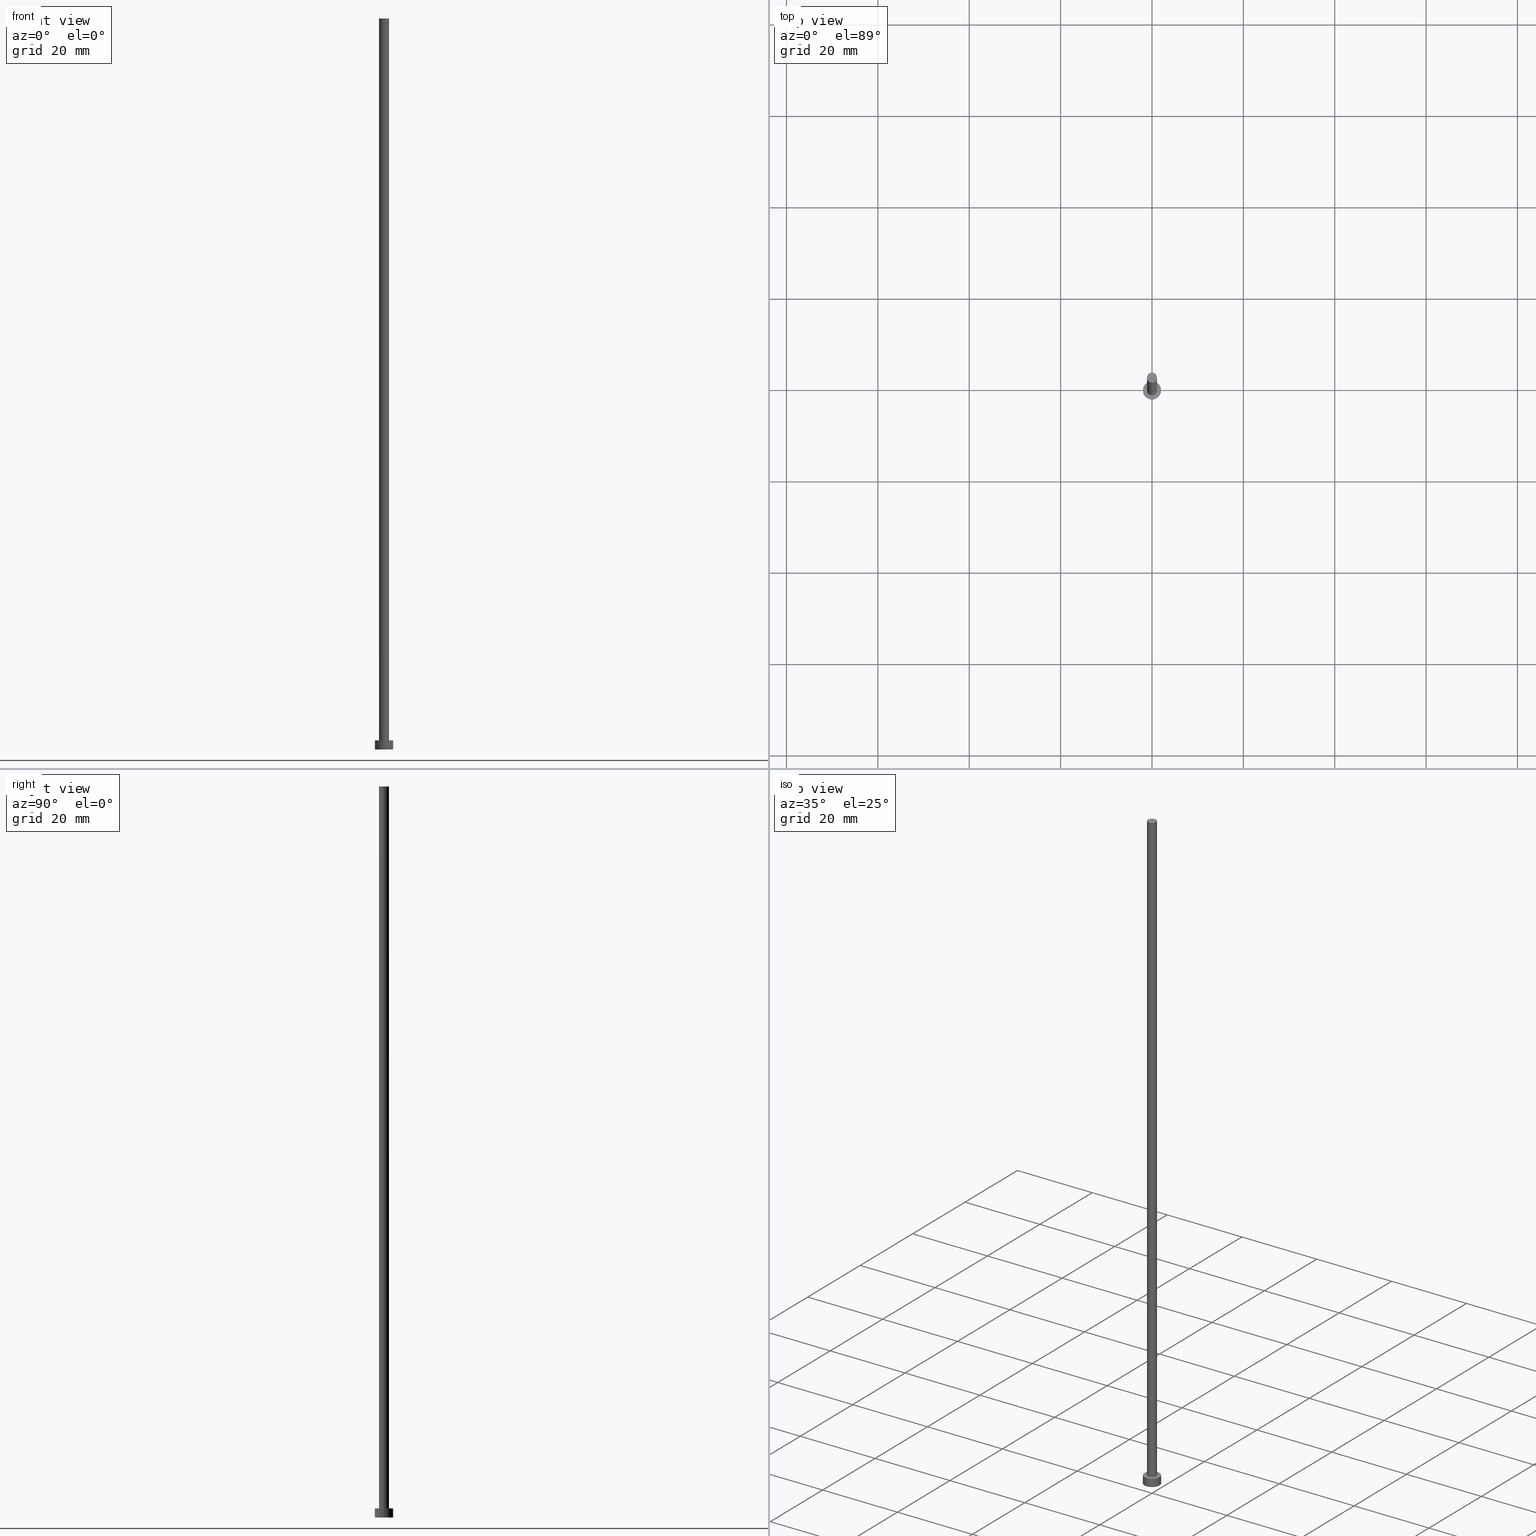
[diagram: canonical four-view strip — front | top / right | iso, engineering-drawing reading convention]
A machine part, canonical four-view strip (front | top / right | iso — engineering-drawing reading convention). The complete STEP part file that produces these views, byte-faithful:
ISO-10303-21;
HEADER;
FILE_DESCRIPTION (( 'STEP AP203' ),
    '1' );
FILE_NAME ('8614.STEP',
    '2023-02-12T12:50:51',
    ( '' ),
    ( '' ),
    'SwSTEP 2.0',
    'SolidWorks 2019',
    '' );
FILE_SCHEMA (( 'CONFIG_CONTROL_DESIGN' ));
ENDSEC;

DATA;
#1 = CARTESIAN_POINT ( 'NONE',  ( -2.000000000000000000, 0.000000000000000000, 0.000000000000000000 ) ) ;
#2 = CALENDAR_DATE ( 2023, 12, 2 ) ;
#3 = CARTESIAN_POINT ( 'NONE',  ( 2.000000000000000000, 2.449293598294706414E-16, 0.000000000000000000 ) ) ;
#4 = DIRECTION ( 'NONE',  ( -1.000000000000000000, 0.000000000000000000, 0.000000000000000000 ) ) ;
#5 = CARTESIAN_POINT ( 'NONE',  ( 0.000000000000000000, 0.000000000000000000, 2.000000000000000000 ) ) ;
#6 = CARTESIAN_POINT ( 'NONE',  ( -2.000000000000000000, 0.000000000000000000, 2.000000000000000000 ) ) ;
#7 = DIRECTION ( 'NONE',  ( 0.000000000000000000, 0.000000000000000000, 1.000000000000000000 ) ) ;
#8 = APPLICATION_PROTOCOL_DEFINITION ( 'international standard', 'config_control_design', 1994, #25 ) ;
#9 = LOCAL_TIME ( 13, 50, 51.00000000000000000, #174 ) ;
#10 =( NAMED_UNIT ( * ) PLANE_ANGLE_UNIT ( ) SI_UNIT ( $, .RADIAN. ) );
#11 = EDGE_CURVE ( 'NONE', #157, #193, #150, .T. ) ;
#12 = APPROVAL_STATUS ( 'not_yet_approved' ) ;
#13 = EDGE_CURVE ( 'NONE', #104, #123, #229, .T. ) ;
#14 = ORIENTED_EDGE ( 'NONE', *, *, #65, .F. ) ;
#15 = DESIGN_CONTEXT ( 'detailed design', #242, 'design' ) ;
#16 = CC_DESIGN_PERSON_AND_ORGANIZATION_ASSIGNMENT ( #237, #209, ( #80 ) ) ;
#17 = CARTESIAN_POINT ( 'NONE',  ( 0.000000000000000000, 0.000000000000000000, 160.0000000000000000 ) ) ;
#18 = FACE_OUTER_BOUND ( 'NONE', #194, .T. ) ;
#19 = AXIS2_PLACEMENT_3D ( 'NONE', #162, #233, #62 ) ;
#20 = ORIENTED_EDGE ( 'NONE', *, *, #243, .T. ) ;
#21 = ADVANCED_FACE ( 'NONE', ( #18 ), #141, .T. ) ;
#22 = DIRECTION ( 'NONE',  ( 1.000000000000000000, 0.000000000000000000, 0.000000000000000000 ) ) ;
#23 = PRODUCT_RELATED_PRODUCT_CATEGORY ( 'detail', '', ( #182 ) ) ;
#24 = CC_DESIGN_APPROVAL ( #158, ( #232 ) ) ;
#25 = APPLICATION_CONTEXT ( 'configuration controlled 3d designs of mechanical parts and assemblies' ) ;
#26 = CARTESIAN_POINT ( 'NONE',  ( 0.000000000000000000, 0.000000000000000000, 160.0000000000000000 ) ) ;
#27 = CYLINDRICAL_SURFACE ( 'NONE', #188, 2.000000000000000000 ) ;
#28 = CARTESIAN_POINT ( 'NONE',  ( 1.100000000000000089, 1.347111479062088503E-16, 160.0000000000000000 ) ) ;
#29 = LOCAL_TIME ( 13, 50, 51.00000000000000000, #38 ) ;
#30 = CARTESIAN_POINT ( 'NONE',  ( -1.100000000000000089, 0.000000000000000000, 160.0000000000000000 ) ) ;
#31 = LINE ( 'NONE', #187, #87 ) ;
#32 = AXIS2_PLACEMENT_3D ( 'NONE', #53, #191, #239 ) ;
#33 = CARTESIAN_POINT ( 'NONE',  ( 0.000000000000000000, 0.000000000000000000, 0.000000000000000000 ) ) ;
#34 = ADVANCED_FACE ( 'NONE', ( #195 ), #170, .T. ) ;
#35 = MANIFOLD_SOLID_BREP ( 'P�idat vysunut�m3', #83 ) ;
#36 = SECURITY_CLASSIFICATION_LEVEL ( 'unclassified' ) ;
#37 = ORIENTED_EDGE ( 'NONE', *, *, #13, .F. ) ;
#38 = COORDINATED_UNIVERSAL_TIME_OFFSET ( 1, 0, .AHEAD. ) ;
#39 = VERTEX_POINT ( 'NONE', #224 ) ;
#40 = ORIENTED_EDGE ( 'NONE', *, *, #171, .F. ) ;
#41 = DIRECTION ( 'NONE',  ( 1.000000000000000000, 0.000000000000000000, 0.000000000000000000 ) ) ;
#42 = VECTOR ( 'NONE', #240, 1000.000000000000000 ) ;
#43 = DIRECTION ( 'NONE',  ( 0.000000000000000000, 0.000000000000000000, 1.000000000000000000 ) ) ;
#44 = PERSON_AND_ORGANIZATION ( #79, #176 ) ;
#45 = CC_DESIGN_DATE_AND_TIME_ASSIGNMENT ( #85, #159, ( #221 ) ) ;
#46 = CARTESIAN_POINT ( 'NONE',  ( 0.000000000000000000, 0.000000000000000000, 2.000000000000000000 ) ) ;
#47 = COORDINATED_UNIVERSAL_TIME_OFFSET ( 1, 0, .AHEAD. ) ;
#48 = DIRECTION ( 'NONE',  ( -1.000000000000000000, 0.000000000000000000, 0.000000000000000000 ) ) ;
#49 = LINE ( 'NONE', #132, #134 ) ;
#50 = LINE ( 'NONE', #92, #42 ) ;
#51 = CIRCLE ( 'NONE', #216, 2.000000000000000000 ) ;
#52 = PLANE ( 'NONE',  #185 ) ;
#53 = CARTESIAN_POINT ( 'NONE',  ( 0.000000000000000000, 0.000000000000000000, 0.000000000000000000 ) ) ;
#54 = ORIENTED_EDGE ( 'NONE', *, *, #226, .T. ) ;
#55 = ORIENTED_EDGE ( 'NONE', *, *, #90, .F. ) ;
#56 = CC_DESIGN_DATE_AND_TIME_ASSIGNMENT ( #91, #57, ( #232 ) ) ;
#57 = DATE_TIME_ROLE ( 'creation_date' ) ;
#58 = ORIENTED_EDGE ( 'NONE', *, *, #171, .T. ) ;
#59 = PERSON_AND_ORGANIZATION ( #79, #176 ) ;
#60 = APPROVAL_PERSON_ORGANIZATION ( #139, #70, #129 ) ;
#61 = ADVANCED_FACE ( 'NONE', ( #166, #67 ), #131, .T. ) ;
#62 = DIRECTION ( 'NONE',  ( 1.000000000000000000, 0.000000000000000000, 0.000000000000000000 ) ) ;
#63 = DIRECTION ( 'NONE',  ( 0.000000000000000000, 0.000000000000000000, 1.000000000000000000 ) ) ;
#64 = ORIENTED_EDGE ( 'NONE', *, *, #126, .T. ) ;
#65 = EDGE_CURVE ( 'NONE', #254, #215, #173, .T. ) ;
#66 = ORIENTED_EDGE ( 'NONE', *, *, #226, .F. ) ;
#67 = FACE_OUTER_BOUND ( 'NONE', #197, .T. ) ;
#68 = AXIS2_PLACEMENT_3D ( 'NONE', #17, #63, #124 ) ;
#69 = PERSON_AND_ORGANIZATION ( #79, #176 ) ;
#70 = APPROVAL ( #12, 'NEUR�EN�' ) ;
#71 = EDGE_CURVE ( 'NONE', #39, #253, #113, .T. ) ;
#72 = APPLICATION_PROTOCOL_DEFINITION ( 'international standard', 'config_control_design', 1994, #242 ) ;
#73 = EDGE_CURVE ( 'NONE', #215, #254, #121, .T. ) ;
#74 = CC_DESIGN_APPROVAL ( #167, ( #221 ) ) ;
#75 = CARTESIAN_POINT ( 'NONE',  ( 0.000000000000000000, 0.000000000000000000, 160.0000000000000000 ) ) ;
#76 = AXIS2_PLACEMENT_3D ( 'NONE', #201, #218, #77 ) ;
#77 = DIRECTION ( 'NONE',  ( 1.000000000000000000, 0.000000000000000000, 0.000000000000000000 ) ) ;
#78 = DATE_AND_TIME ( #154, #9 ) ;
#79 = PERSON ( 'NEUR�EN�', 'NEUR�EN�', 'NEUR�EN�', ('NEUR�EN�'), ('NEUR�EN�'), ('NEUR�EN�') ) ;
#80 = PRODUCT_DEFINITION_FORMATION_WITH_SPECIFIED_SOURCE ( 'LIBOVOLN�', '', #182, .NOT_KNOWN. ) ;
#81 = CARTESIAN_POINT ( 'NONE',  ( 1.100000000000000089, 1.347111479062088503E-16, 160.0000000000000000 ) ) ;
#82 = CC_DESIGN_PERSON_AND_ORGANIZATION_ASSIGNMENT ( #220, #100, ( #80 ) ) ;
#83 = CLOSED_SHELL ( 'NONE', ( #34, #99, #161, #61, #196, #207, #21 ) ) ;
#84 = APPROVAL_DATE_TIME ( #234, #158 ) ;
#85 = DATE_AND_TIME ( #251, #200 ) ;
#86 = ORIENTED_EDGE ( 'NONE', *, *, #13, .T. ) ;
#87 = VECTOR ( 'NONE', #189, 1000.000000000000000 ) ;
#88 = EDGE_LOOP ( 'NONE', ( #37, #40 ) ) ;
#89 = AXIS2_PLACEMENT_3D ( 'NONE', #46, #199, #22 ) ;
#90 = EDGE_CURVE ( 'NONE', #193, #157, #202, .T. ) ;
#91 = DATE_AND_TIME ( #107, #130 ) ;
#92 = CARTESIAN_POINT ( 'NONE',  ( -1.100000000000000089, 0.000000000000000000, 160.0000000000000000 ) ) ;
#93 = CARTESIAN_POINT ( 'NONE',  ( 0.000000000000000000, 0.000000000000000000, 0.000000000000000000 ) ) ;
#94 = DIRECTION ( 'NONE',  ( -0.000000000000000000, -0.000000000000000000, -1.000000000000000000 ) ) ;
#95 = VECTOR ( 'NONE', #181, 1000.000000000000000 ) ;
#96 = CC_DESIGN_PERSON_AND_ORGANIZATION_ASSIGNMENT ( #69, #119, ( #221 ) ) ;
#97 = APPROVAL_PERSON_ORGANIZATION ( #59, #167, #122 ) ;
#98 = FACE_OUTER_BOUND ( 'NONE', #88, .T. ) ;
#99 = ADVANCED_FACE ( 'NONE', ( #146 ), #225, .T. ) ;
#100 = PERSON_AND_ORGANIZATION_ROLE ( 'creator' ) ;
#101 = APPROVAL_STATUS ( 'not_yet_approved' ) ;
#102 = EDGE_LOOP ( 'NONE', ( #105, #14, #64, #175 ) ) ;
#103 = CALENDAR_DATE ( 2023, 12, 2 ) ;
#104 = VERTEX_POINT ( 'NONE', #1 ) ;
#105 = ORIENTED_EDGE ( 'NONE', *, *, #114, .F. ) ;
#106 = ORIENTED_EDGE ( 'NONE', *, *, #90, .T. ) ;
#107 = CALENDAR_DATE ( 2023, 12, 2 ) ;
#108 = DIRECTION ( 'NONE',  ( -0.000000000000000000, -0.000000000000000000, -1.000000000000000000 ) ) ;
#109 = MECHANICAL_CONTEXT ( 'NONE', #25, 'mechanical' ) ;
#110 = DIRECTION ( 'NONE',  ( -1.000000000000000000, 0.000000000000000000, 0.000000000000000000 ) ) ;
#111 = CARTESIAN_POINT ( 'NONE',  ( 0.000000000000000000, 0.000000000000000000, 2.000000000000000000 ) ) ;
#112 = FACE_OUTER_BOUND ( 'NONE', #213, .T. ) ;
#113 = CIRCLE ( 'NONE', #76, 1.100000000000000089 ) ;
#114 = EDGE_CURVE ( 'NONE', #215, #253, #204, .T. ) ;
#115 = DIRECTION ( 'NONE',  ( 0.000000000000000000, 0.000000000000000000, 1.000000000000000000 ) ) ;
#116 = UNCERTAINTY_MEASURE_WITH_UNIT (LENGTH_MEASURE( 1.000000000000000082E-05 ), #246, 'distance_accuracy_value', 'NONE');
#117 = PRODUCT_DEFINITION_SHAPE ( 'NONE', 'NONE',  #232 ) ;
#118 = PERSON_AND_ORGANIZATION ( #79, #176 ) ;
#119 = PERSON_AND_ORGANIZATION_ROLE ( 'classification_officer' ) ;
#120 = ORIENTED_EDGE ( 'NONE', *, *, #65, .T. ) ;
#121 = CIRCLE ( 'NONE', #245, 1.100000000000000089 ) ;
#122 = APPROVAL_ROLE ( '' ) ;
#123 = VERTEX_POINT ( 'NONE', #3 ) ;
#124 = DIRECTION ( 'NONE',  ( 1.000000000000000000, 0.000000000000000000, -0.000000000000000000 ) ) ;
#125 = ORIENTED_EDGE ( 'NONE', *, *, #190, .F. ) ;
#126 = EDGE_CURVE ( 'NONE', #254, #39, #50, .T. ) ;
#127 = COORDINATED_UNIVERSAL_TIME_OFFSET ( 1, 0, .AHEAD. ) ;
#128 = CARTESIAN_POINT ( 'NONE',  ( 0.000000000000000000, 0.000000000000000000, 160.0000000000000000 ) ) ;
#129 = APPROVAL_ROLE ( '' ) ;
#130 = LOCAL_TIME ( 13, 50, 51.00000000000000000, #127 ) ;
#131 = PLANE ( 'NONE',  #223 ) ;
#132 = CARTESIAN_POINT ( 'NONE',  ( -2.000000000000000000, 0.000000000000000000, 2.000000000000000000 ) ) ;
#133 = DIRECTION ( 'NONE',  ( 0.000000000000000000, 0.000000000000000000, 1.000000000000000000 ) ) ;
#134 = VECTOR ( 'NONE', #94, 1000.000000000000000 ) ;
#135 = CC_DESIGN_PERSON_AND_ORGANIZATION_ASSIGNMENT ( #252, #219, ( #232 ) ) ;
#136 = AXIS2_PLACEMENT_3D ( 'NONE', #128, #238, #151 ) ;
#137 = CARTESIAN_POINT ( 'NONE',  ( 1.100000000000000089, 1.347111479062088503E-16, 2.000000000000000000 ) ) ;
#138 = DIRECTION ( 'NONE',  ( 1.000000000000000000, 0.000000000000000000, 0.000000000000000000 ) ) ;
#139 = PERSON_AND_ORGANIZATION ( #79, #176 ) ;
#140 = APPROVAL_PERSON_ORGANIZATION ( #44, #158, #198 ) ;
#141 = PLANE ( 'NONE',  #68 ) ;
#142 = ORIENTED_EDGE ( 'NONE', *, *, #73, .T. ) ;
#143 = ORIENTED_EDGE ( 'NONE', *, *, #243, .F. ) ;
#144 = CC_DESIGN_PERSON_AND_ORGANIZATION_ASSIGNMENT ( #118, #249, ( #182 ) ) ;
#145 = DIRECTION ( 'NONE',  ( 1.000000000000000000, 0.000000000000000000, -0.000000000000000000 ) ) ;
#146 = FACE_OUTER_BOUND ( 'NONE', #177, .T. ) ;
#147 = APPROVAL_DATE_TIME ( #179, #70 ) ;
#148 = DIRECTION ( 'NONE',  ( -0.000000000000000000, -0.000000000000000000, -1.000000000000000000 ) ) ;
#149 = DIRECTION ( 'NONE',  ( 1.000000000000000000, 0.000000000000000000, 0.000000000000000000 ) ) ;
#150 = CIRCLE ( 'NONE', #168, 2.000000000000000000 ) ;
#151 = DIRECTION ( 'NONE',  ( 1.000000000000000000, 0.000000000000000000, 0.000000000000000000 ) ) ;
#152 = APPROVAL_DATE_TIME ( #78, #167 ) ;
#153 = ADVANCED_BREP_SHAPE_REPRESENTATION ( '8614', ( #35, #32 ), #227 ) ;
#154 = CALENDAR_DATE ( 2023, 12, 2 ) ;
#155 = CYLINDRICAL_SURFACE ( 'NONE', #165, 1.100000000000000089 ) ;
#156 = DIRECTION ( 'NONE',  ( 1.000000000000000000, 0.000000000000000000, -0.000000000000000000 ) ) ;
#157 = VERTEX_POINT ( 'NONE', #203 ) ;
#158 = APPROVAL ( #101, 'NEUR�EN�' ) ;
#159 = DATE_TIME_ROLE ( 'classification_date' ) ;
#160 = EDGE_LOOP ( 'NONE', ( #231, #66 ) ) ;
#161 = ADVANCED_FACE ( 'NONE', ( #112 ), #27, .T. ) ;
#162 = CARTESIAN_POINT ( 'NONE',  ( 0.000000000000000000, 0.000000000000000000, 0.000000000000000000 ) ) ;
#163 = EDGE_LOOP ( 'NONE', ( #210, #178, #54, #164 ) ) ;
#164 = ORIENTED_EDGE ( 'NONE', *, *, #126, .F. ) ;
#165 = AXIS2_PLACEMENT_3D ( 'NONE', #208, #186, #206 ) ;
#166 = FACE_BOUND ( 'NONE', #160, .T. ) ;
#167 = APPROVAL ( #212, 'NEUR�EN�' ) ;
#168 = AXIS2_PLACEMENT_3D ( 'NONE', #236, #43, #41 ) ;
#169 = DIRECTION ( 'NONE',  ( 0.000000000000000000, 0.000000000000000000, 1.000000000000000000 ) ) ;
#170 = CYLINDRICAL_SURFACE ( 'NONE', #217, 1.100000000000000089 ) ;
#171 = EDGE_CURVE ( 'NONE', #123, #104, #51, .T. ) ;
#172 =( NAMED_UNIT ( * ) SI_UNIT ( $, .STERADIAN. ) SOLID_ANGLE_UNIT ( ) );
#173 = CIRCLE ( 'NONE', #136, 1.100000000000000089 ) ;
#174 = COORDINATED_UNIVERSAL_TIME_OFFSET ( 1, 0, .AHEAD. ) ;
#175 = ORIENTED_EDGE ( 'NONE', *, *, #71, .T. ) ;
#176 = ORGANIZATION ( 'NEUR�EN�', 'NEUR�EN�', '' ) ;
#177 = EDGE_LOOP ( 'NONE', ( #235, #20, #58, #125 ) ) ;
#178 = ORIENTED_EDGE ( 'NONE', *, *, #114, .T. ) ;
#179 = DATE_AND_TIME ( #103, #29 ) ;
#180 = CARTESIAN_POINT ( 'NONE',  ( 0.000000000000000000, 0.000000000000000000, 2.000000000000000000 ) ) ;
#181 = DIRECTION ( 'NONE',  ( -0.000000000000000000, -0.000000000000000000, -1.000000000000000000 ) ) ;
#182 = PRODUCT ( '8614', '8614', '', ( #109 ) ) ;
#183 = DIRECTION ( 'NONE',  ( -0.000000000000000000, -0.000000000000000000, -1.000000000000000000 ) ) ;
#184 = DIRECTION ( 'NONE',  ( 1.000000000000000000, 0.000000000000000000, 0.000000000000000000 ) ) ;
#185 = AXIS2_PLACEMENT_3D ( 'NONE', #33, #115, #156 ) ;
#186 = DIRECTION ( 'NONE',  ( -0.000000000000000000, -0.000000000000000000, -1.000000000000000000 ) ) ;
#187 = CARTESIAN_POINT ( 'NONE',  ( 2.000000000000000000, 2.449293598294706414E-16, 2.000000000000000000 ) ) ;
#188 = AXIS2_PLACEMENT_3D ( 'NONE', #5, #183, #4 ) ;
#189 = DIRECTION ( 'NONE',  ( -0.000000000000000000, -0.000000000000000000, -1.000000000000000000 ) ) ;
#190 = EDGE_CURVE ( 'NONE', #193, #104, #49, .T. ) ;
#191 = DIRECTION ( 'NONE',  ( 0.000000000000000000, 0.000000000000000000, 1.000000000000000000 ) ) ;
#192 = COORDINATED_UNIVERSAL_TIME_OFFSET ( 1, 0, .AHEAD. ) ;
#193 = VERTEX_POINT ( 'NONE', #6 ) ;
#194 = EDGE_LOOP ( 'NONE', ( #120, #142 ) ) ;
#195 = FACE_OUTER_BOUND ( 'NONE', #163, .T. ) ;
#196 = ADVANCED_FACE ( 'NONE', ( #98 ), #52, .F. ) ;
#197 = EDGE_LOOP ( 'NONE', ( #106, #214 ) ) ;
#198 = APPROVAL_ROLE ( '' ) ;
#199 = DIRECTION ( 'NONE',  ( 0.000000000000000000, 0.000000000000000000, 1.000000000000000000 ) ) ;
#200 = LOCAL_TIME ( 13, 50, 51.00000000000000000, #192 ) ;
#201 = CARTESIAN_POINT ( 'NONE',  ( 0.000000000000000000, 0.000000000000000000, 2.000000000000000000 ) ) ;
#202 = CIRCLE ( 'NONE', #89, 2.000000000000000000 ) ;
#203 = CARTESIAN_POINT ( 'NONE',  ( 2.000000000000000000, 2.449293598294706414E-16, 2.000000000000000000 ) ) ;
#204 = LINE ( 'NONE', #28, #95 ) ;
#205 = CC_DESIGN_SECURITY_CLASSIFICATION ( #221, ( #80 ) ) ;
#206 = DIRECTION ( 'NONE',  ( -1.000000000000000000, 0.000000000000000000, 0.000000000000000000 ) ) ;
#207 = ADVANCED_FACE ( 'NONE', ( #244 ), #155, .T. ) ;
#208 = CARTESIAN_POINT ( 'NONE',  ( 0.000000000000000000, 0.000000000000000000, 160.0000000000000000 ) ) ;
#209 = PERSON_AND_ORGANIZATION_ROLE ( 'design_supplier' ) ;
#210 = ORIENTED_EDGE ( 'NONE', *, *, #73, .F. ) ;
#211 = CC_DESIGN_APPROVAL ( #70, ( #80 ) ) ;
#212 = APPROVAL_STATUS ( 'not_yet_approved' ) ;
#213 = EDGE_LOOP ( 'NONE', ( #143, #55, #230, #86 ) ) ;
#214 = ORIENTED_EDGE ( 'NONE', *, *, #11, .T. ) ;
#215 = VERTEX_POINT ( 'NONE', #81 ) ;
#216 = AXIS2_PLACEMENT_3D ( 'NONE', #93, #169, #149 ) ;
#217 = AXIS2_PLACEMENT_3D ( 'NONE', #75, #148, #48 ) ;
#218 = DIRECTION ( 'NONE',  ( 0.000000000000000000, 0.000000000000000000, 1.000000000000000000 ) ) ;
#219 = PERSON_AND_ORGANIZATION_ROLE ( 'creator' ) ;
#220 = PERSON_AND_ORGANIZATION ( #79, #176 ) ;
#221 = SECURITY_CLASSIFICATION ( '', '', #36 ) ;
#222 = DIRECTION ( 'NONE',  ( 0.000000000000000000, 0.000000000000000000, 1.000000000000000000 ) ) ;
#223 = AXIS2_PLACEMENT_3D ( 'NONE', #180, #133, #145 ) ;
#224 = CARTESIAN_POINT ( 'NONE',  ( -1.100000000000000089, 0.000000000000000000, 2.000000000000000000 ) ) ;
#225 = CYLINDRICAL_SURFACE ( 'NONE', #250, 2.000000000000000000 ) ;
#226 = EDGE_CURVE ( 'NONE', #253, #39, #248, .T. ) ;
#227 =( GEOMETRIC_REPRESENTATION_CONTEXT ( 3 ) GLOBAL_UNCERTAINTY_ASSIGNED_CONTEXT ( ( #116 ) ) GLOBAL_UNIT_ASSIGNED_CONTEXT ( ( #246, #10, #172 ) ) REPRESENTATION_CONTEXT ( 'NONE', 'WORKASPACE' ) );
#228 = SHAPE_DEFINITION_REPRESENTATION ( #117, #153 ) ;
#229 = CIRCLE ( 'NONE', #19, 2.000000000000000000 ) ;
#230 = ORIENTED_EDGE ( 'NONE', *, *, #190, .T. ) ;
#231 = ORIENTED_EDGE ( 'NONE', *, *, #71, .F. ) ;
#232 = PRODUCT_DEFINITION ( 'NEZN�M�', '', #80, #15 ) ;
#233 = DIRECTION ( 'NONE',  ( 0.000000000000000000, 0.000000000000000000, 1.000000000000000000 ) ) ;
#234 = DATE_AND_TIME ( #2, #255 ) ;
#235 = ORIENTED_EDGE ( 'NONE', *, *, #11, .F. ) ;
#236 = CARTESIAN_POINT ( 'NONE',  ( 0.000000000000000000, 0.000000000000000000, 2.000000000000000000 ) ) ;
#237 = PERSON_AND_ORGANIZATION ( #79, #176 ) ;
#238 = DIRECTION ( 'NONE',  ( 0.000000000000000000, 0.000000000000000000, 1.000000000000000000 ) ) ;
#239 = DIRECTION ( 'NONE',  ( 1.000000000000000000, 0.000000000000000000, 0.000000000000000000 ) ) ;
#240 = DIRECTION ( 'NONE',  ( -0.000000000000000000, -0.000000000000000000, -1.000000000000000000 ) ) ;
#241 = CARTESIAN_POINT ( 'NONE',  ( 0.000000000000000000, 0.000000000000000000, 2.000000000000000000 ) ) ;
#242 = APPLICATION_CONTEXT ( 'configuration controlled 3d designs of mechanical parts and assemblies' ) ;
#243 = EDGE_CURVE ( 'NONE', #157, #123, #31, .T. ) ;
#244 = FACE_OUTER_BOUND ( 'NONE', #102, .T. ) ;
#245 = AXIS2_PLACEMENT_3D ( 'NONE', #26, #222, #184 ) ;
#246 =( LENGTH_UNIT ( ) NAMED_UNIT ( * ) SI_UNIT ( .MILLI., .METRE. ) );
#247 = AXIS2_PLACEMENT_3D ( 'NONE', #241, #7, #138 ) ;
#248 = CIRCLE ( 'NONE', #247, 1.100000000000000089 ) ;
#249 = PERSON_AND_ORGANIZATION_ROLE ( 'design_owner' ) ;
#250 = AXIS2_PLACEMENT_3D ( 'NONE', #111, #108, #110 ) ;
#251 = CALENDAR_DATE ( 2023, 12, 2 ) ;
#252 = PERSON_AND_ORGANIZATION ( #79, #176 ) ;
#253 = VERTEX_POINT ( 'NONE', #137 ) ;
#254 = VERTEX_POINT ( 'NONE', #30 ) ;
#255 = LOCAL_TIME ( 13, 50, 51.00000000000000000, #47 ) ;
ENDSEC;
END-ISO-10303-21;
